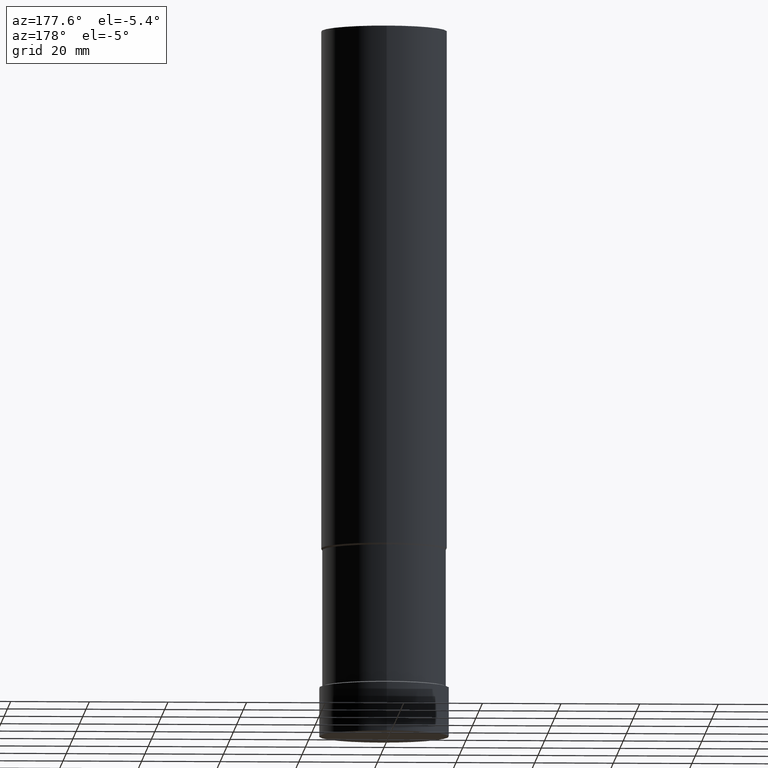
[diagram: clean part render]
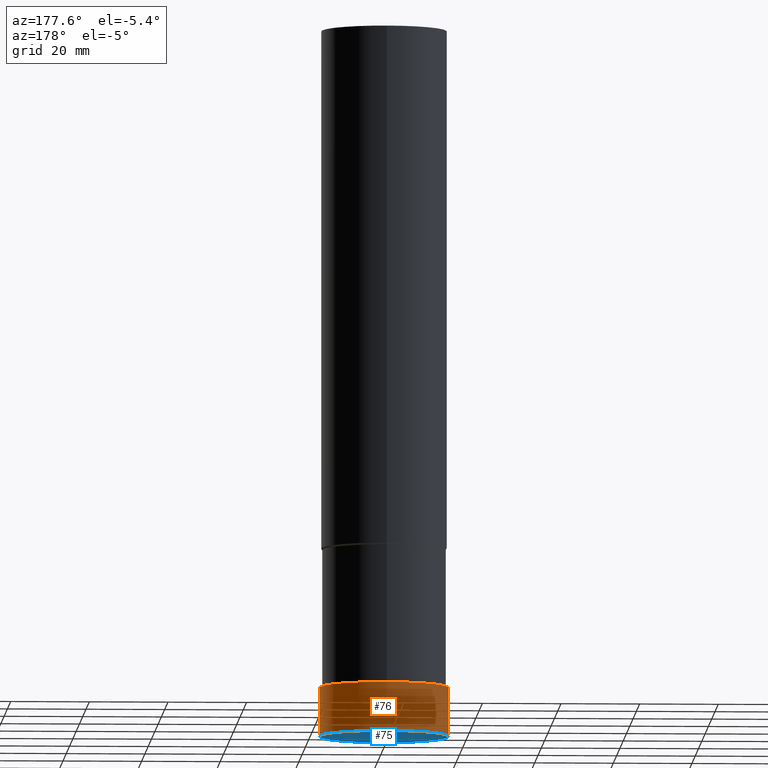
[diagram: same view with the hole feature highlighted: cylindrical wall and planar end face, labeled with their STEP entity ids]
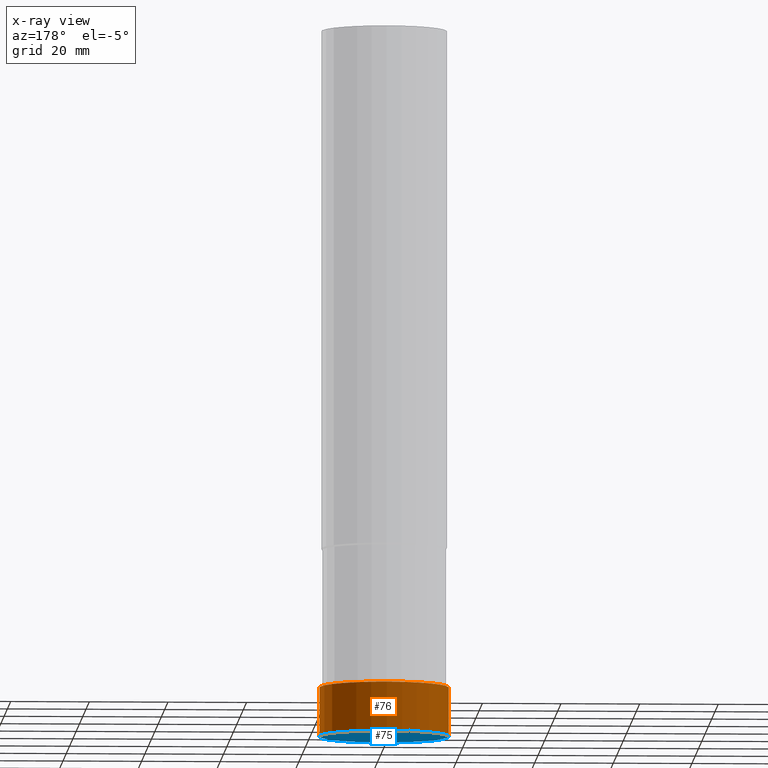
[diagram: x-ray of the same camera — body ghosted, the hole faces saturated]
A machine part, auxiliary view. The highlighted faces form one hole feature of diameter 33 mm: the cylindrical wall (entity #76, orange) and its adjacent planar end face (entity #75, blue) — they share a circular edge in the B-rep.
The next image is the same camera in x-ray (body ghosted, the hole faces saturated) — the bore reads through the body.
Wall:
#76=ADVANCED_FACE('',(#85,#86),#87,.T.);
#85=FACE_BOUND('',#104,.T.);
#86=FACE_BOUND('',#105,.T.);
#87=CYLINDRICAL_SURFACE('',#106,16.5000000000002);
#104=EDGE_LOOP('',(#125));
#105=EDGE_LOOP('',(#126));
#106=AXIS2_PLACEMENT_3D('',#127,#128,#129);
#125=ORIENTED_EDGE('',*,*,#155,.F.);
#126=ORIENTED_EDGE('',*,*,#154,.T.);
#127=CARTESIAN_POINT('',(-3.81508856512275E-016,-7.58645251295877E-014,6.23051245106583));
#128=DIRECTION('',(6.12323399573677E-017,1.28738160312661E-014,-1.0));
#129=DIRECTION('',(-7.93121032505865E-031,1.0,1.28738160312661E-014));
#154=EDGE_CURVE('',#160,#160,#161,.T.);
#155=EDGE_CURVE('',#162,#162,#163,.T.);
#160=VERTEX_POINT('',#172);
#161=CIRCLE('',#173,16.5000000000001);
#162=VERTEX_POINT('',#174);
#163=CIRCLE('',#175,16.5000000000003);
#172=CARTESIAN_POINT('',(-2.03378202127293E-031,16.5000000000001,2.02066721859314E-015));
#173=AXIS2_PLACEMENT_3D('',#184,#185,#186);
#174=CARTESIAN_POINT('',(-7.63017713024576E-016,16.5000000000001,12.4610249021321));
#175=AXIS2_PLACEMENT_3D('',#187,#188,#189);
#184=CARTESIAN_POINT('',(1.21822944180841E-029,4.34594594594923E-015,-1.98951966012828E-013));
#185=DIRECTION('',(-6.12323399573677E-017,-1.28738160312661E-014,1.0));
#186=DIRECTION('',(-7.93121032505864E-031,1.0,1.28738160312661E-014));
#187=CARTESIAN_POINT('',(-7.63017713024564E-016,-1.56074996205125E-013,12.4610249021319));
#188=DIRECTION('',(-6.12323399573677E-017,-1.28738160312661E-014,1.0));
#189=DIRECTION('',(-7.93121032505864E-031,1.0,1.28738160312661E-014));
End face:
#75=ADVANCED_FACE('',(#83),#84,.T.);
#83=FACE_OUTER_BOUND('',#102,.T.);
#84=PLANE('',#103);
#102=EDGE_LOOP('',(#121));
#103=AXIS2_PLACEMENT_3D('',#122,#123,#124);
#121=ORIENTED_EDGE('',*,*,#154,.F.);
#122=CARTESIAN_POINT('',(-1.01689101063647E-031,8.25000000000005,1.01033360929657E-015));
#123=DIRECTION('',(6.12323399573677E-017,1.22464679914735E-016,-1.0));
#124=DIRECTION('',(1.23259516440783E-032,-1.0,-1.22464679914735E-016));
#154=EDGE_CURVE('',#160,#160,#161,.T.);
#160=VERTEX_POINT('',#172);
#161=CIRCLE('',#173,16.5000000000001);
#172=CARTESIAN_POINT('',(-2.03378202127293E-031,16.5000000000001,2.02066721859314E-015));
#173=AXIS2_PLACEMENT_3D('',#184,#185,#186);
#184=CARTESIAN_POINT('',(1.21822944180841E-029,4.34594594594923E-015,-1.98951966012828E-013));
#185=DIRECTION('',(-6.12323399573677E-017,-1.28738160312661E-014,1.0));
#186=DIRECTION('',(-7.93121032505864E-031,1.0,1.28738160312661E-014));